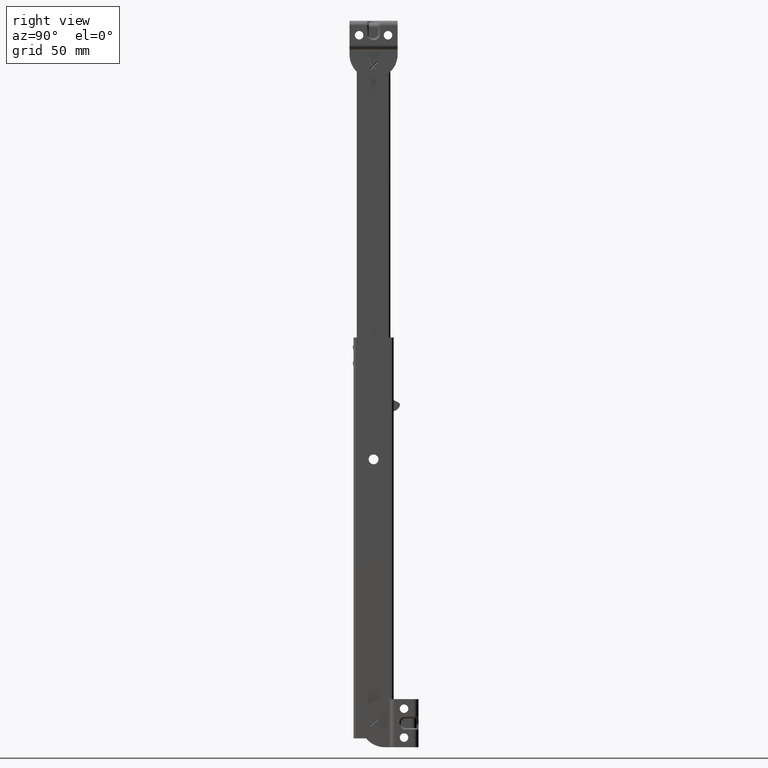
[diagram: clean part render]
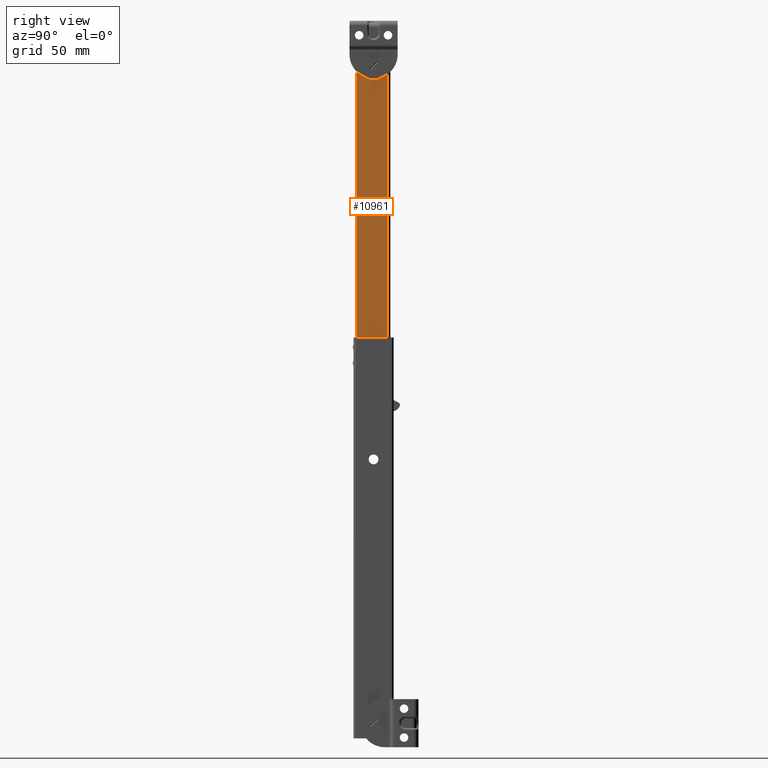
[diagram: same view with one face highlighted and labeled with its STEP entity id]
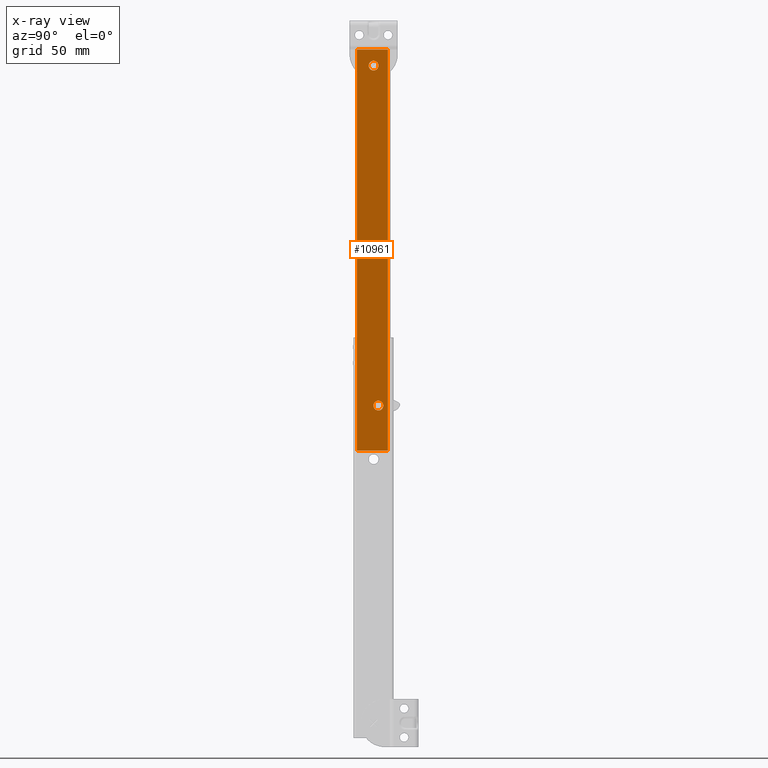
[diagram: x-ray of the same camera — body ghosted, the highlighted face saturated]
A machine part, right view. The second image highlights one B-rep face of the part: STEP entity #10961.
The next image is the same camera in x-ray: the body ghosted, the highlighted face saturated — about 0% of this face is hidden behind the body in this view.
In plain terms, the highlighted face is a freeform B-spline surface patch.
Its self-contained STEP definition (entity closure, byte-faithful):
#9840=CARTESIAN_POINT('',(-9.299988000000001,-3.026411951700544,409.621409589920290));
#9841=VERTEX_POINT('',#9840);
#9842=CARTESIAN_POINT('',(-9.299988000000001,-3.505627E-014,406.949999999999990));
#9843=VERTEX_POINT('',#9842);
#9844=CARTESIAN_POINT('',(-9.299988000000001,-3.026411951700544,409.621409589920230));
#9845=CARTESIAN_POINT('',(-9.299988000000001,-2.692230723759099,406.949999999999990));
#9846=CARTESIAN_POINT('',(-9.299988000000001,-3.505627E-014,406.949999999999990));
#9854=(BOUNDED_CURVE()B_SPLINE_CURVE(2,(#9844,#9845,#9846),.UNSPECIFIED.,.F.,.U.)B_SPLINE_CURVE_WITH_KNOTS((3,3),(0.771473929387101,1.0),.UNSPECIFIED.)CURVE()GEOMETRIC_REPRESENTATION_ITEM()RATIONAL_B_SPLINE_CURVE((0.954005429466648,0.732265054381591,1.0))REPRESENTATION_ITEM(''));
#9855=EDGE_CURVE('',#9841,#9843,#9854,.T.);
#9857=CARTESIAN_POINT('',(-9.299988000000001,3.049883865312563,410.026615937065630));
#9858=VERTEX_POINT('',#9857);
#9859=CARTESIAN_POINT('',(-9.299988000000001,-3.505627E-014,406.949999999999990));
#9860=CARTESIAN_POINT('',(-9.299988000000001,3.049999999999965,406.950000000000050));
#9861=CARTESIAN_POINT('',(-9.299988000000001,3.049999999999965,410.0));
#9862=CARTESIAN_POINT('',(-9.299988000000001,3.049999999999966,410.013308223799020));
#9863=CARTESIAN_POINT('',(-9.299988000000001,3.049883865312564,410.026615937065690));
#9871=(BOUNDED_CURVE()B_SPLINE_CURVE(2,(#9859,#9860,#9861,#9862,#9863),.UNSPECIFIED.,.F.,.U.)B_SPLINE_CURVE_WITH_KNOTS((3,2,3),(0.0,0.250000000000000,0.251539894773410),.UNSPECIFIED.)CURVE()GEOMETRIC_REPRESENTATION_ITEM()RATIONAL_B_SPLINE_CURVE((1.0,0.707106781186547,1.0,0.998195901052727,0.996414027085772))REPRESENTATION_ITEM(''));
#9872=EDGE_CURVE('',#9843,#9858,#9871,.T.);
#9943=CARTESIAN_POINT('',(-9.299988000000001,-3.505627E-014,413.050000000000010));
#9944=VERTEX_POINT('',#9943);
#9945=CARTESIAN_POINT('',(-9.299988000000001,-3.505627E-014,413.050000000000010));
#9946=CARTESIAN_POINT('',(-9.299988000000001,-3.050000000000036,413.050000000000010));
#9947=CARTESIAN_POINT('',(-9.299988000000001,-3.050000000000035,410.0));
#9948=CARTESIAN_POINT('',(-9.299988000000001,-3.050000000000036,409.809969967243030));
#9949=CARTESIAN_POINT('',(-9.299988000000001,-3.026411951700543,409.621409589920230));
#9957=(BOUNDED_CURVE()B_SPLINE_CURVE(2,(#9945,#9946,#9947,#9948,#9949),.UNSPECIFIED.,.F.,.U.)B_SPLINE_CURVE_WITH_KNOTS((3,2,3),(0.500000000000000,0.750000000000000,0.771473929387100),.UNSPECIFIED.)CURVE()GEOMETRIC_REPRESENTATION_ITEM()RATIONAL_B_SPLINE_CURVE((1.0,0.707106781186547,1.0,0.974841726804957,0.954005429466649))REPRESENTATION_ITEM(''));
#9958=EDGE_CURVE('',#9944,#9841,#9957,.T.);
#9992=CARTESIAN_POINT('',(-9.299988000000001,3.049883865312563,410.026615937065630));
#9993=CARTESIAN_POINT('',(-9.299988000000001,3.023499184788809,413.049999999999900));
#9994=CARTESIAN_POINT('',(-9.299988000000001,-3.505627E-014,413.050000000000010));
#10002=(BOUNDED_CURVE()B_SPLINE_CURVE(2,(#9992,#9993,#9994),.UNSPECIFIED.,.F.,.U.)B_SPLINE_CURVE_WITH_KNOTS((3,3),(0.251539894773410,0.500000000000000),.UNSPECIFIED.)CURVE()GEOMETRIC_REPRESENTATION_ITEM()RATIONAL_B_SPLINE_CURVE((0.996414027085772,0.708910880133820,1.0))REPRESENTATION_ITEM(''));
#10003=EDGE_CURVE('',#9858,#9944,#10002,.T.);
#10212=CARTESIAN_POINT('',(-9.299988000000001,-0.026411951700508,197.621409589920290));
#10213=VERTEX_POINT('',#10212);
#10214=CARTESIAN_POINT('',(-9.299988000000001,3.0,194.949999999999990));
#10215=VERTEX_POINT('',#10214);
#10216=CARTESIAN_POINT('',(-9.299988000000001,-0.026411951700508,197.621409589920320));
#10217=CARTESIAN_POINT('',(-9.299988000000001,0.307769276240941,194.950000000000070));
#10218=CARTESIAN_POINT('',(-9.299988000000001,3.0,194.949999999999990));
#10226=(BOUNDED_CURVE()B_SPLINE_CURVE(2,(#10216,#10217,#10218),.UNSPECIFIED.,.F.,.U.)B_SPLINE_CURVE_WITH_KNOTS((3,3),(0.771473929387101,1.0),.UNSPECIFIED.)CURVE()GEOMETRIC_REPRESENTATION_ITEM()RATIONAL_B_SPLINE_CURVE((0.954005429466647,0.732265054381591,1.0))REPRESENTATION_ITEM(''));
#10227=EDGE_CURVE('',#10213,#10215,#10226,.T.);
#10229=CARTESIAN_POINT('',(-9.299988000000001,6.049883865312598,198.026615937065710));
#10230=VERTEX_POINT('',#10229);
#10231=CARTESIAN_POINT('',(-9.299988000000001,3.0,194.949999999999990));
#10232=CARTESIAN_POINT('',(-9.299988000000001,6.050000000000000,194.950000000000100));
#10233=CARTESIAN_POINT('',(-9.299988000000001,6.050000000000000,198.0));
#10234=CARTESIAN_POINT('',(-9.299988000000001,6.050000000000000,198.013308223798960));
#10235=CARTESIAN_POINT('',(-9.299988000000001,6.049883865312599,198.026615937065690));
#10243=(BOUNDED_CURVE()B_SPLINE_CURVE(2,(#10231,#10232,#10233,#10234,#10235),.UNSPECIFIED.,.F.,.U.)B_SPLINE_CURVE_WITH_KNOTS((3,2,3),(0.0,0.250000000000000,0.251539894773410),.UNSPECIFIED.)CURVE()GEOMETRIC_REPRESENTATION_ITEM()RATIONAL_B_SPLINE_CURVE((1.0,0.707106781186547,1.0,0.998195901052727,0.996414027085771))REPRESENTATION_ITEM(''));
#10244=EDGE_CURVE('',#10215,#10230,#10243,.T.);
#10315=CARTESIAN_POINT('',(-9.299988000000001,3.0,201.050000000000010));
#10316=VERTEX_POINT('',#10315);
#10317=CARTESIAN_POINT('',(-9.299988000000001,3.0,201.050000000000010));
#10318=CARTESIAN_POINT('',(-9.299988000000001,-0.050000000000000,201.050000000000070));
#10319=CARTESIAN_POINT('',(-9.299988000000001,-0.050000000000000,198.0));
#10320=CARTESIAN_POINT('',(-9.299988000000001,-0.050000000000000,197.809969967242860));
#10321=CARTESIAN_POINT('',(-9.299988000000001,-0.026411951700508,197.621409589920290));
#10329=(BOUNDED_CURVE()B_SPLINE_CURVE(2,(#10317,#10318,#10319,#10320,#10321),.UNSPECIFIED.,.F.,.U.)B_SPLINE_CURVE_WITH_KNOTS((3,2,3),(0.500000000000000,0.750000000000000,0.771473929387100),.UNSPECIFIED.)CURVE()GEOMETRIC_REPRESENTATION_ITEM()RATIONAL_B_SPLINE_CURVE((1.0,0.707106781186547,1.0,0.974841726804957,0.954005429466649))REPRESENTATION_ITEM(''));
#10330=EDGE_CURVE('',#10316,#10213,#10329,.T.);
#10364=CARTESIAN_POINT('',(-9.299988000000001,6.049883865312598,198.026615937065710));
#10365=CARTESIAN_POINT('',(-9.299988000000001,6.023499184788837,201.050000000000010));
#10366=CARTESIAN_POINT('',(-9.299988000000001,3.0,201.050000000000010));
#10374=(BOUNDED_CURVE()B_SPLINE_CURVE(2,(#10364,#10365,#10366),.UNSPECIFIED.,.F.,.U.)B_SPLINE_CURVE_WITH_KNOTS((3,3),(0.251539894773410,0.500000000000000),.UNSPECIFIED.)CURVE()GEOMETRIC_REPRESENTATION_ITEM()RATIONAL_B_SPLINE_CURVE((0.996414027085771,0.708910880133820,1.0))REPRESENTATION_ITEM(''));
#10375=EDGE_CURVE('',#10230,#10316,#10374,.T.);
#10457=CARTESIAN_POINT('',(-9.299988000000001,8.900000000000000,213.0));
#10458=VERTEX_POINT('',#10457);
#10483=CARTESIAN_POINT('',(-9.299988000000001,8.900000000000000,420.0));
#10484=VERTEX_POINT('',#10483);
#10498=CARTESIAN_POINT('',(-9.299988000000001,8.900000000000000,420.0));
#10499=CARTESIAN_POINT('',(-9.299988000000001,8.900000000000000,213.0));
#10500=QUASI_UNIFORM_CURVE('',1,(#10498,#10499),.UNSPECIFIED.,.F.,.U.);
#10501=EDGE_CURVE('',#10484,#10458,#10500,.T.);
#10520=CARTESIAN_POINT('',(-9.299988000000001,8.900000000000000,170.0));
#10521=VERTEX_POINT('',#10520);
#10544=CARTESIAN_POINT('',(-9.299988000000001,8.900000000000000,185.0));
#10545=VERTEX_POINT('',#10544);
#10561=CARTESIAN_POINT('',(-9.299988000000001,8.900000000000000,185.0));
#10562=CARTESIAN_POINT('',(-9.299988000000001,8.900000000000000,170.0));
#10563=QUASI_UNIFORM_CURVE('',1,(#10561,#10562),.UNSPECIFIED.,.F.,.U.);
#10564=EDGE_CURVE('',#10545,#10521,#10563,.T.);
#10731=CARTESIAN_POINT('',(-9.299988000000001,8.900000000000000,185.0));
#10732=CARTESIAN_POINT('',(-9.299988000000001,8.900000000000000,213.0));
#10733=QUASI_UNIFORM_CURVE('',1,(#10731,#10732),.UNSPECIFIED.,.F.,.U.);
#10734=EDGE_CURVE('',#10545,#10458,#10733,.T.);
#10786=CARTESIAN_POINT('',(-9.299988000000001,-10.500000000000000,420.0));
#10787=VERTEX_POINT('',#10786);
#10793=CARTESIAN_POINT('',(-9.299988000000001,8.900000000000000,420.0));
#10794=CARTESIAN_POINT('',(-9.299988000000001,-10.500000000000000,420.0));
#10795=QUASI_UNIFORM_CURVE('',1,(#10793,#10794),.UNSPECIFIED.,.F.,.U.);
#10796=EDGE_CURVE('',#10484,#10787,#10795,.T.);
#10813=CARTESIAN_POINT('',(-9.299988000000001,-10.500000000000000,170.0));
#10814=VERTEX_POINT('',#10813);
#10815=CARTESIAN_POINT('',(-9.299988000000001,8.900000000000000,170.0));
#10816=CARTESIAN_POINT('',(-9.299988000000001,-10.500000000000000,170.0));
#10817=QUASI_UNIFORM_CURVE('',1,(#10815,#10816),.UNSPECIFIED.,.F.,.U.);
#10818=EDGE_CURVE('',#10521,#10814,#10817,.T.);
#10928=CARTESIAN_POINT('',(-9.299988000000001,-10.500000000000000,170.0));
#10929=CARTESIAN_POINT('',(-9.299988000000001,-10.500000000000000,420.0));
#10930=QUASI_UNIFORM_CURVE('',1,(#10928,#10929),.UNSPECIFIED.,.F.,.U.);
#10931=EDGE_CURVE('',#10814,#10787,#10930,.T.);
#10936=CARTESIAN_POINT('',(-9.299988000000001,-11.469029893088610,432.487499515451470));
#10937=CARTESIAN_POINT('',(-9.299988000000001,-11.469029893088610,157.512493779025990));
#10938=CARTESIAN_POINT('',(-9.299988000000001,9.869029025841030,432.487499515451470));
#10939=CARTESIAN_POINT('',(-9.299988000000001,9.869029025841030,157.512493779025990));
#10940=B_SPLINE_SURFACE_WITH_KNOTS('',1,1,((#10936,#10938),(#10937,#10939)),.UNSPECIFIED.,.F.,.F.,.U.,(2,2),(2,2),(0.0,274.975005736425490),(0.0,21.338058918929640),.UNSPECIFIED.);
#10941=ORIENTED_EDGE('',*,*,#10734,.T.);
#10942=ORIENTED_EDGE('',*,*,#10501,.F.);
#10943=ORIENTED_EDGE('',*,*,#10796,.T.);
#10944=ORIENTED_EDGE('',*,*,#10931,.F.);
#10945=ORIENTED_EDGE('',*,*,#10818,.F.);
#10946=ORIENTED_EDGE('',*,*,#10564,.F.);
#10947=EDGE_LOOP('',(#10941,#10942,#10943,#10944,#10945,#10946));
#10948=FACE_OUTER_BOUND('',#10947,.T.);
#10949=ORIENTED_EDGE('',*,*,#10244,.F.);
#10950=ORIENTED_EDGE('',*,*,#10227,.F.);
#10951=ORIENTED_EDGE('',*,*,#10330,.F.);
#10952=ORIENTED_EDGE('',*,*,#10375,.F.);
#10953=EDGE_LOOP('',(#10949,#10950,#10951,#10952));
#10954=FACE_BOUND('',#10953,.T.);
#10955=ORIENTED_EDGE('',*,*,#9872,.F.);
#10956=ORIENTED_EDGE('',*,*,#9855,.F.);
#10957=ORIENTED_EDGE('',*,*,#9958,.F.);
#10958=ORIENTED_EDGE('',*,*,#10003,.F.);
#10959=EDGE_LOOP('',(#10955,#10956,#10957,#10958));
#10960=FACE_BOUND('',#10959,.T.);
#10961=ADVANCED_FACE('',(#10948,#10954,#10960),#10940,.T.);